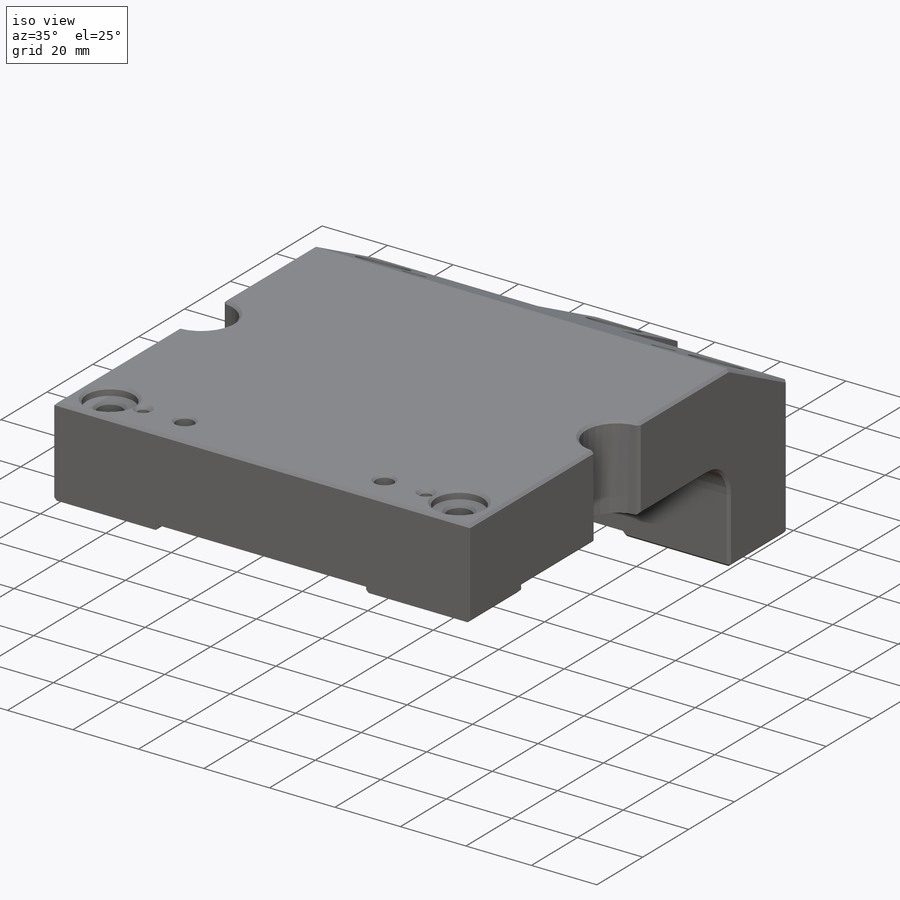
[diagram: iso view]
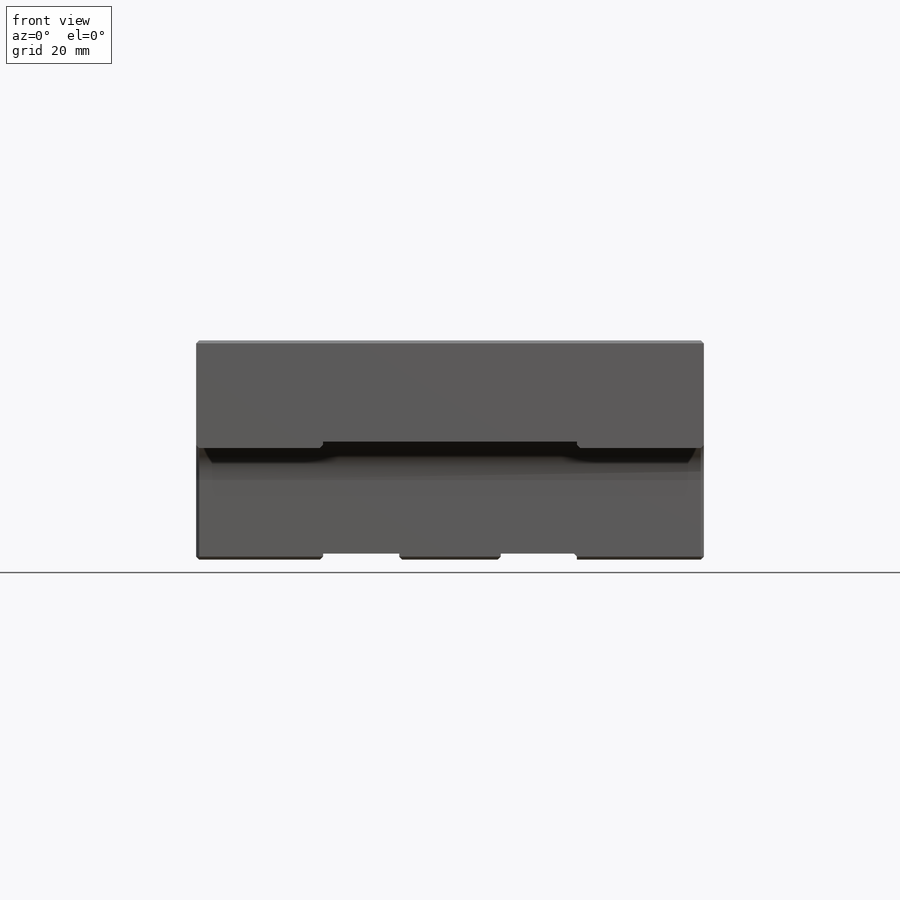
[diagram: front view]
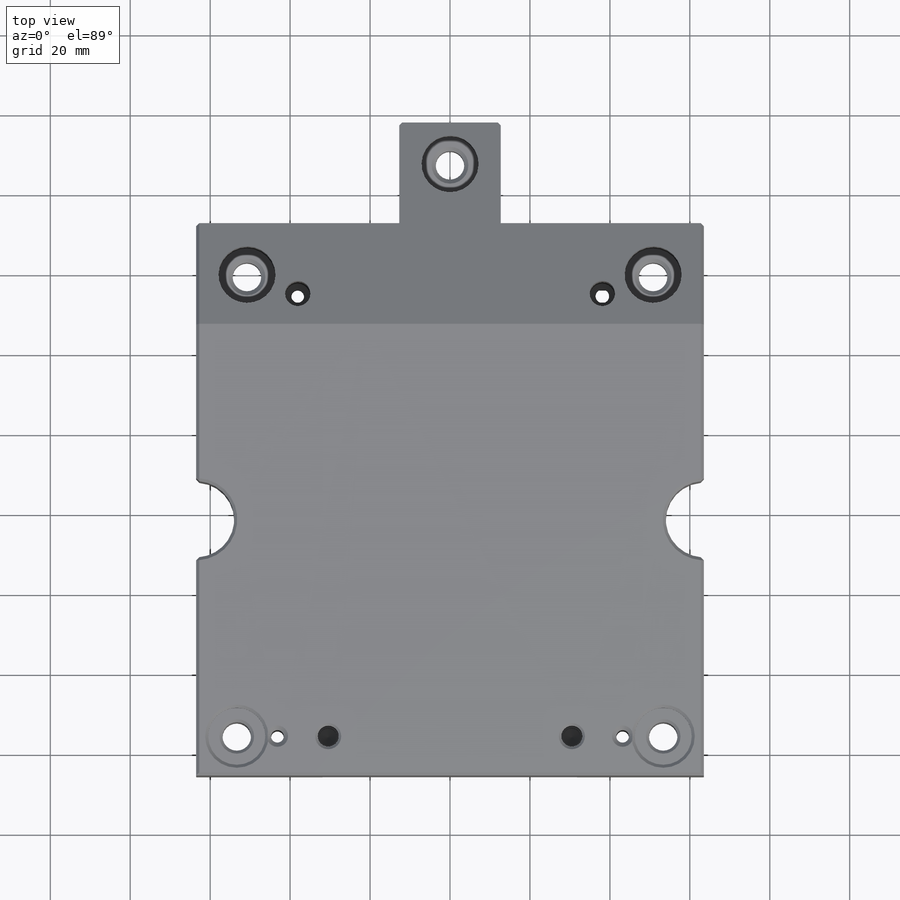
[diagram: top view]
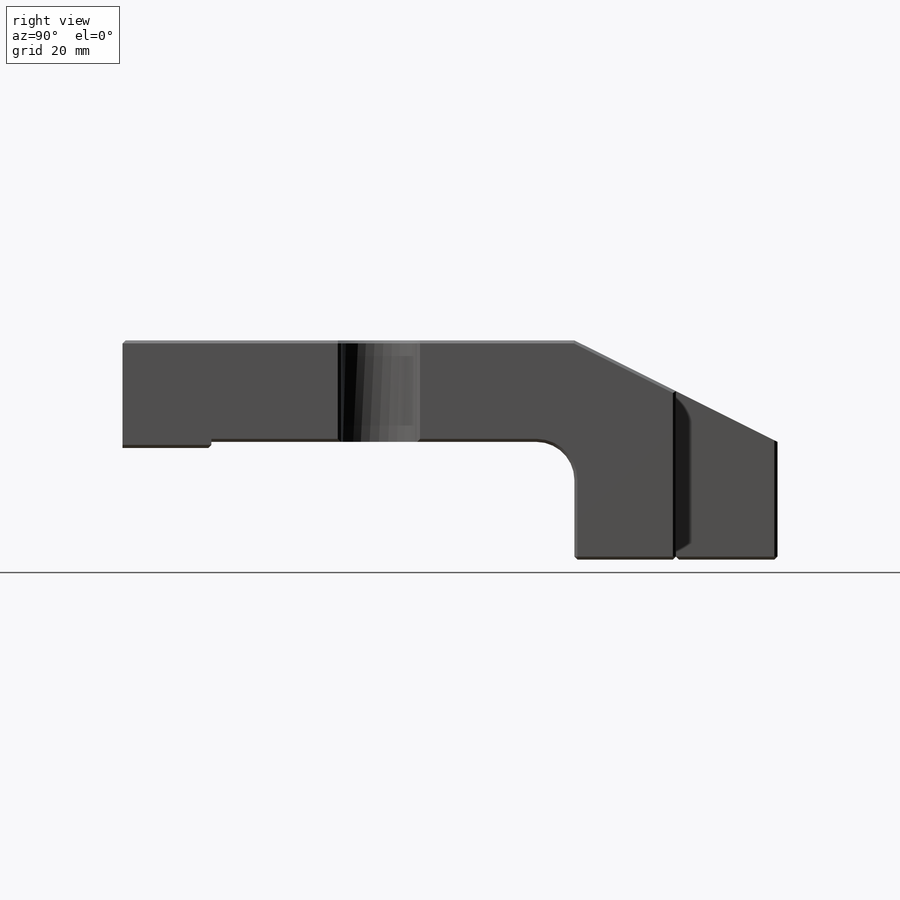
[diagram: right view]
SOLIDWORKS PART (.sldprt)
format: sldprt  version: not decoded by parser v0  size: 825,344 bytes
history: native  units: mm
features: sketch x21, hole x6, cut_extrude x6, fillet x6, extrude x3, chamfer x3, material x1 (+14 scaffold rows collapsed)
feature tree (60):
  scaffold x14  (default folders/planes/origin — collapsed)
  material  "6061-T6 Al"
  sketch  "Sketch1"  dims[c1.D1=101.6mm c1.D2=25.4mm c1.D3=25.4mm c1.D4=29.464mm c1.D5=19.05mm c1.D6=6.35mm c2.D1=82.55mm c2.D7=19.05mm c3.D1=59.3725mm c3.D5=66.04mm c3.D6=12.7mm c4.D1=138.43mm]
  extrude  "Extrude1"  Depth=127mm
  sketch  "Sketch12"  dims[c1.D1=~27.61928mm c1.D2=~25.571759mm c2.D1=25.4mm c2.D2=25.4mm c3.D2=90.0deg c4.D2=25.4mm c4.D3=~97.479418mm]
  extrude  "Extrude3"  [1 undecoded]
  sketch  "Sketch15"  dims[c1.D1=~25.070358mm c1.D2=~30.283495mm c2.D1=~25.070358mm c2.D2=~34.221643mm c3.D1=22.225mm c3.D2=63.5mm c3.D3=31.75mm]
  extrude  "Extrude6"  Depth=1.524mm
  hole  "CBORE for 1/4 Socket Head Cap Screw2"  Diameter=7.14248mm Depth=54.864mm
  sketch  "Sketch5"  dims[c1.D1=8.509mm c1.D2=25.4mm c2.D1=101.6mm c2.D3=50.8mm c2.D2=59.3725mm c2.D4=27.94mm]
  sketch  "Sketch4"  dims[hole-wizard template sketch: 42 standard entries collapsed; hole parameters kept: c12.Thru Hole Depth=54.864mm c12.C'Bore Dia.=14.2875mm c12.C'Bore Depth=38.1mm c12.Mid C'Sink Dia.=9.2075mm c12.D6=~5.388154mm c12.Mid C'Sink Angle=90.0deg c12.Far C'Sink Dia.=9.2075mm c12.D8=~2.963249mm c12.Far C'Sink Angle=90.0deg c12.D9=~4.399409mm]
  sketch  "Sketch25"  dims[c1.D5=6.35mm c1.D6=~8.739115mm c1.D8=~8.739115mm c1.D9=14.2875mm c1.D1=12.7mm c1.D3=12.7mm c1.D2=12.7mm c2.D3=14.2875mm c2.D1=~19.450751mm c2.D2=~31.238187mm c3.D1=~19.450751mm c3.D2=~31.753118mm c4.D1=19.05mm c4.D2=19.05mm c4.D3=25.4mm c4.D4=25.4mm c4.D6=10.16mm c4.D7=10.16mm c4.D8=9.6139mm c5.D1=10.16mm c5.D3=9.906mm c5.D2=10.16mm c6.D3=115.57mm]
  cut_extrude  "Extrude8"  Depth=2.54mm
  hole  "1/4 Clearance Hole1"  Diameter=7.14248mm Depth=54.86405mm
  sketch  "Sketch8"  dims[c1.D3=~7.14248mm c1.D1=106.68mm c1.D2=53.34mm c2.D3=115.57mm c2.D4=115.57mm c2.D5=115.57mm c2.D6=115.57mm c3.D5=~108.42625mm c3.D6=~111.60125mm c4.D5=~110.96625mm c4.D6=~111.60125mm c4.D4=~115.574892mm c4.D3=115.57mm]
  sketch  "Sketch7"  dims[hole-wizard template sketch: 47 standard entries collapsed; hole parameters kept: c15.Thru Hole Depth=~54.86405mm c15.Near C'Sink Dia.=~8.41248mm c15.D4=~3.666174mm c15.Near C'Sink Angle=90.0deg c15.Far C'Sink Dia.=~8.41248mm c15.D6=~9.919017mm c15.Far C'Sink Angle=90.0deg]
  fillet  "Fillet2"  Radius=9.525mm faceID=2
  fillet  "FaceIDTag-5"  Radius=5 faceID=5
  fillet  "FaceIDTag-6"  Radius=6 faceID=6
  fillet  "FaceIDTag-7"  Radius=7 faceID=7
  fillet  "FaceIDTag-12"  Radius=12 faceID=12
  fillet  "FaceIDTag-13"  Radius=13 faceID=13
  sketch  "Sketch13"  dims[D1=25.4mm D2=25.4mm]
  cut_extrude  "Extrude4"  [1 undecoded]
  sketch  "Sketch14"  dims[c1.D1=25.4mm c1.D2=25.4mm c2.D1=~24.325866mm c2.D2=~25.489484mm c3.D1=25.4mm c3.D2=25.4mm c4.D1=31.75mm c4.D2=31.75mm]
  cut_extrude  "Extrude5"  Depth=1.524mm
  sketch  "Sketch16"  dims[c1.D1=~3.18262mm c1.D6=1.1811mm c1.D4=~1.59512mm c2.D1=~5.992658mm c2.D2=76.2mm c2.D3=3.175mm c2.D4=38.1mm c2.D5=120.65mm c3.D1=54.61mm c3.D2=38.1mm]
  cut_extrude  "dowel slot"  Depth=9.525mm
  hole  "1/4 (0.25) Diameter Hole1"  Diameter=6.35mm Depth=44.45mm
  sketch  "Sketch18"  dims[D1=76.2mm]
  sketch  "Sketch17"  dims[hole-wizard template sketch: 47 standard entries collapsed; hole parameters kept: c15.Hole Depth=44.45mm c15.D3=~14.816244mm c15.Drill Angle=118.0deg]
  hole  "Pin Hole .125"  Diameter=3.19024mm Depth=26.924138mm
  sketch  "Sketch22"  dims[D1=86.36mm D2=43.18mm D3=56.1975mm]
  sketch  "Sketch21"  dims[hole-wizard template sketch: 46 standard entries collapsed; hole parameters kept: c15.Thru Hole Dia.=~3.19024mm c15.Thru Hole Depth=~26.924138mm c15.Near C'Sink Dia.=5.334mm c15.D4=~3.666174mm c15.Near C'Sink Angle=90.0deg c15.Far C'Sink Dia.=5.334mm c15.D6=~9.919017mm c15.Far C'Sink Angle=90.0deg]
  hole  "Tapped Hole for #8-32 Helicoil1"  Diameter=4.3942mm Depth=15.5194mm
  sketch  "Sketch24"  dims[c1.D1=~3.17754mm c1.D2=~3.17754mm c2.D1=12.7mm c2.D2=12.7mm c3.D1=12.7mm c3.D2=12.7mm]
  sketch  "Sketch23"  dims[hole-wizard template sketch: 26 standard entries collapsed; hole parameters kept: c8.Tap Drill Dia.=4.3942mm c8.Tap Drill Depth=15.5194mm c8.Thread Major Dia.=~5.27558mm c8.Thread Depth=10.3632mm c8.Near C'Sink Dia.=~6.54558mm c8.D6=~4.399409mm c8.Near C'Sink Angle=90.0deg c8.D7=~14.816244mm c8.Drill Angle=118.0deg]
  sketch  "Sketch26"  dims[D1=12.7mm]
  cut_extrude  "Extrude9"  Depth=1.524mm
  sketch  "Sketch27"  dims[c1.D1=19.05mm c1.D2=19.05mm c1.D3=19.05mm c2.D2=127.0mm c2.D3=1.905mm]
  cut_extrude  "Extrude10"  [1 undecoded]
  chamfer  "Chamfer1"  Distance=0.762mm Angle=45deg
  chamfer  "Chamfer2"  Distance=0.762mm Angle=45deg
  hole  "1/8 (0.125) dowel hole from pilot"  Diameter=3.19024mm Depth=9.525mm
  sketch  "Sketch29"  dims[D1=~38.10381mm D2=54.61mm]
  sketch  "Sketch28"  dims[hole-wizard template sketch: 46 standard entries collapsed; hole parameters above]
  chamfer  "Chamfer3"  Distance=1.016mm Angle=45deg
decode coverage: 42 of 45 modeling features carry decoded parameters
note: ~ marks probable driven/reference dimensions
note: 3 parameter values undecoded
summary: Diameter pulled from absorbed wizard sketch | no parameter record found for 3 features
note: suppression state not decoded; provenance and decode notes live in map.json
